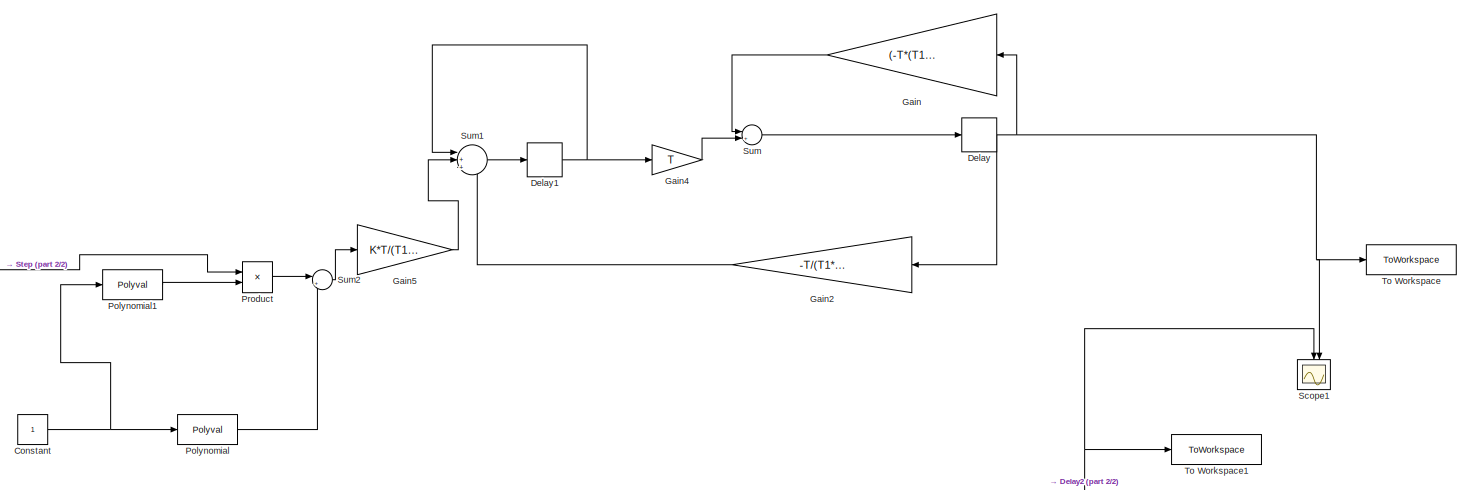
[diagram: root canvas - part 1/2, full width, top band]
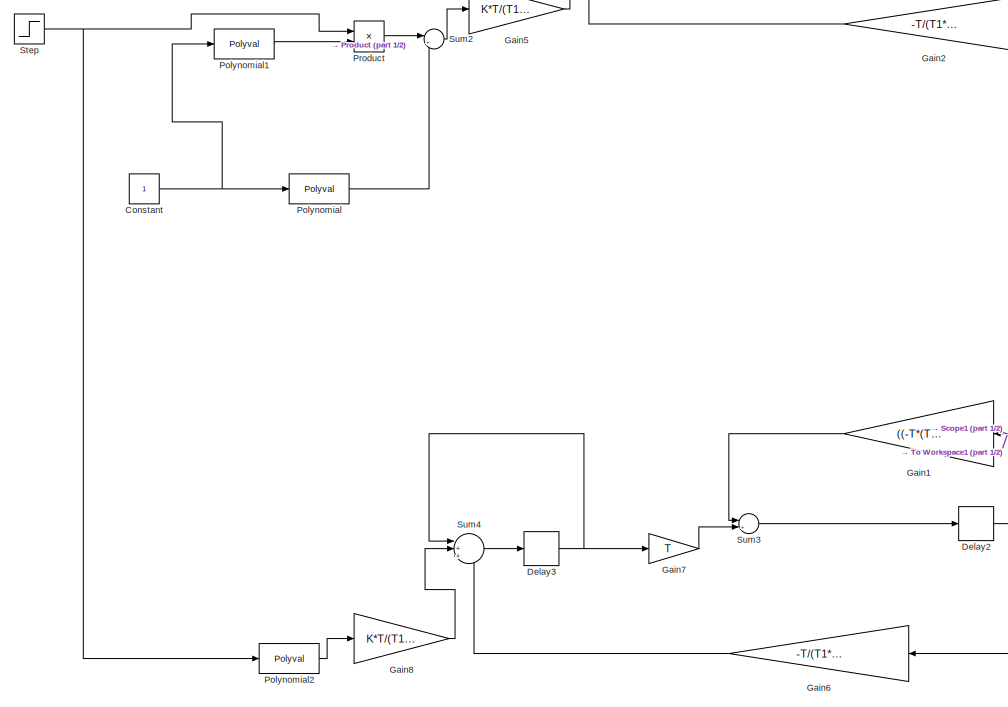
[diagram: root canvas - part 2/2, middle left region]
MODEL slx_2380b87bcc7c
KIND model
CONFIG AbsTol = auto
CONFIG EnableMultiTasking = off
CONFIG FixedStep = auto
CONFIG MaxStep = auto
CONFIG MinStep = auto
CONFIG RelTol = 1e-3
CONFIG SampleTimeConstraint = Unconstrained
CONFIG SolverName = VariableStepAuto
CONFIG StartTime = 0.0
CONFIG StopTime = 100
WORKSPACE source: mxarray member
WORKSPACE T: Simulink.Parameter (value not decoded)
WORKSPACE T1: Simulink.Parameter (value not decoded)
WORKSPACE T2: Simulink.Parameter (value not decoded)
WORKSPACE u_: Simulink.Parameter (value not decoded)
BLOCK [Constant] Constant
BLOCK [Delay] Delay
  DelayLength = 1
  InitialCondition = 0
  InputPortMap = u0
  SampleTime = T
BLOCK [Delay] Delay1
  DelayLength = 1
  InitialCondition = 0
  InputPortMap = u0
  SampleTime = T
BLOCK [Delay] Delay2
  DelayLength = 1
  InitialCondition = 0
  InputPortMap = u0
  SampleTime = T
BLOCK [Delay] Delay3
  DelayLength = 1
  InitialCondition = 0
  InputPortMap = u0
  SampleTime = T
BLOCK [Gain] Gain
  Gain = (-T*(T1+T2)/(T1*T2))+1
  NameLocation = top
BLOCK [Gain] Gain1
  Gain = ((-T*(T1+T2))/(T1*T2))+1
  NameLocation = top
BLOCK [Gain] Gain2
  Gain = -T/(T1*T2)
  NameLocation = top
BLOCK [Gain] Gain4
  Gain = T
BLOCK [Gain] Gain5
  Gain = K*T/(T1*T2)
BLOCK [Gain] Gain6
  Gain = -T/(T1*T2)
  NameLocation = top
BLOCK [Gain] Gain7
  Gain = T
BLOCK [Gain] Gain8
  Gain = K*T/(T1*T2)
BLOCK [Polyval] Polynomial
  Coefs = [-3*a4,-2*a3,-a2,0,0]
BLOCK [Polyval] Polynomial1
  Coefs = [4*a4, 3*a3,2*a2,a1]
BLOCK [Polyval] Polynomial2
  Coefs = [a4,a3,a2,a1,0]
BLOCK [Product] Product
BLOCK [Scope] Scope1
  Floating = off
  NameLocation = left
  NumInputPorts = 2
  ScopeSpecificationString = Simulink.scopes.TimeScopeBlockCfg('CurrentConfiguration', extmgr.ConfigurationSet(extmgr.Configuration('Core','General UI',true),extmgr.Configuration('Core','Source UI',true),extmgr.Configuration('Sources','WiredSimulink',true,'DataLoggingVariableName','ScopeData1'),extmgr.Configuration('Visuals','Time Domain',true,'SerializedDisplays',{struct('MinYLimReal','-2.79488','MaxYLimReal','0.35545','YLab...<+1373ch>
BLOCK [Step] Step
  SampleTime = T
BLOCK [Sum] Sum
  Inputs = |++
BLOCK [Sum] Sum1
  Inputs = |+++
BLOCK [Sum] Sum2
  Inputs = |++
BLOCK [Sum] Sum3
  Inputs = |++
BLOCK [Sum] Sum4
  Inputs = |+++
BLOCK [ToWorkspace] To Workspace
  FixptAsFi = on
  MaxDataPoints = inf
  SampleTime = -1
  SaveFormat = Structure With Time
  VariableName = linear_var1
BLOCK [ToWorkspace] To Workspace1
  FixptAsFi = on
  MaxDataPoints = inf
  SampleTime = -1
  SaveFormat = Structure With Time
  VariableName = discrete_var1
NET Constant:1 -> Polynomial1:1, Polynomial:1
NET Delay1:1 -> Gain4:1, Sum1:1
NET Delay2:1 -> Gain1:1, Gain6:1, Scope1:1, To Workspace1:1
NET Delay3:1 -> Gain7:1, Sum4:1
NET Delay:1 -> Gain2:1, Gain:1, Scope1:2, To Workspace:1
LINE Gain1:1 -> Sum3:1
LINE Gain2:1 -> Sum1:3
LINE Gain4:1 -> Sum:2
LINE Gain5:1 -> Sum1:2
LINE Gain6:1 -> Sum4:3
LINE Gain7:1 -> Sum3:2
LINE Gain8:1 -> Sum4:2
LINE Gain:1 -> Sum:1
LINE Polynomial1:1 -> Product:2
LINE Polynomial2:1 -> Gain8:1
LINE Polynomial:1 -> Sum2:2
LINE Product:1 -> Sum2:1
NET Step:1 -> Polynomial2:1, Product:1
LINE Sum1:1 -> Delay1:1
LINE Sum2:1 -> Gain5:1
LINE Sum3:1 -> Delay2:1
LINE Sum4:1 -> Delay3:1
LINE Sum:1 -> Delay:1
note: NET lines group one-source signal fan-out (src -> all destinations, sorted); 1:1 wires keep LINE
